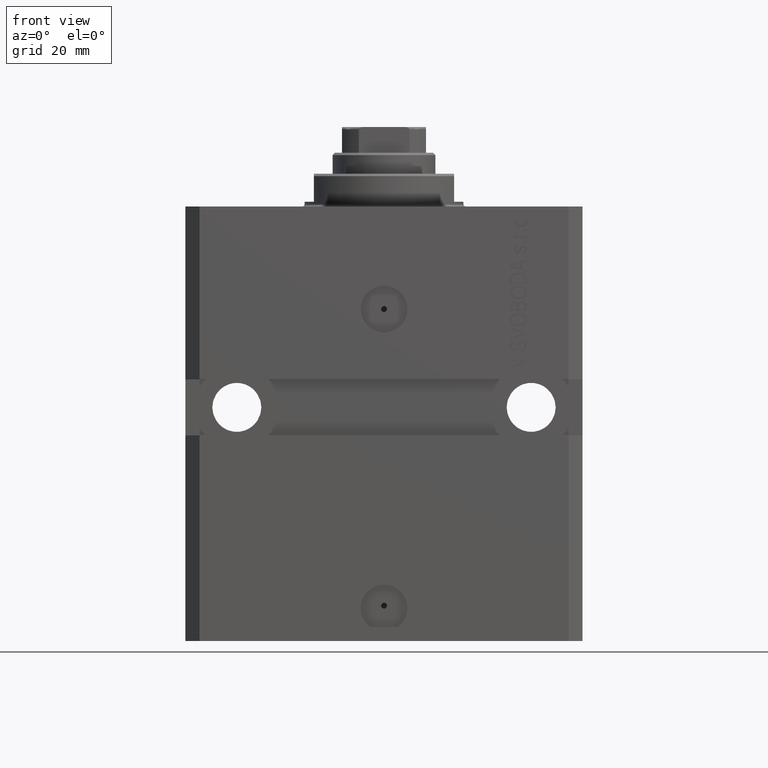
[diagram: clean part render]
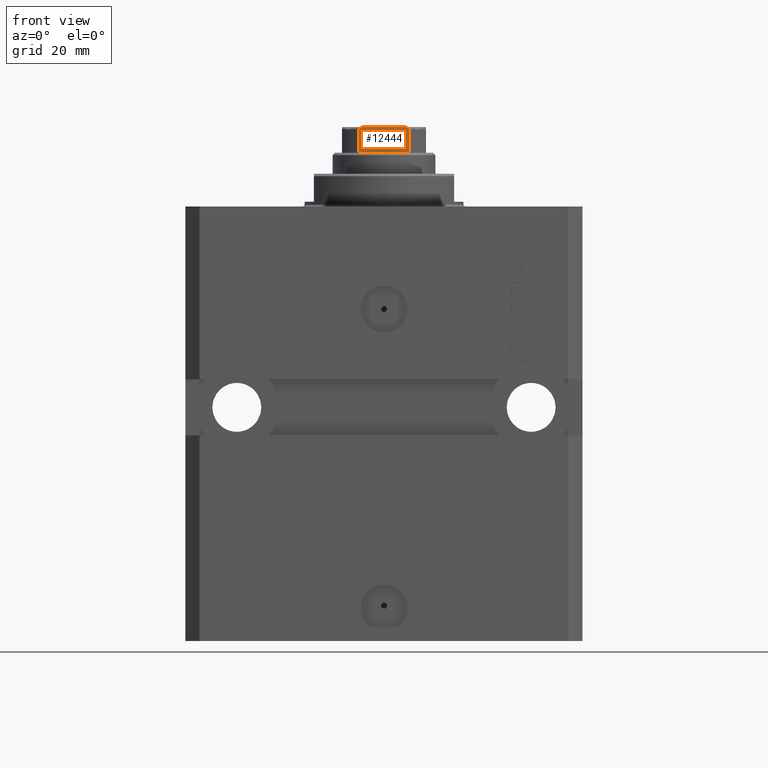
[diagram: same view with one face highlighted and labeled with its STEP entity id]
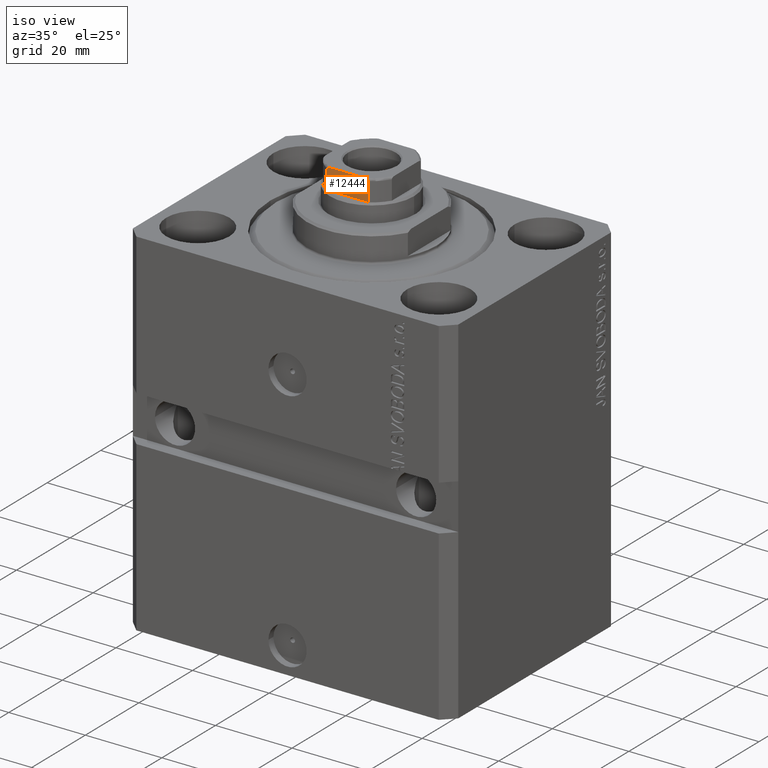
[diagram: same view with one face highlighted and labeled with its STEP entity id]
A machine part, front view. The second image highlights one B-rep face of the part: STEP entity #12444.
A second angle (iso view) of the same face is appended — the face is thin or edge-on in the first view.
In plain terms, the highlighted planar face has unit normal (0, 1, 0).
Its self-contained STEP definition (entity closure, byte-faithful):
#77 = LINE ( 'NONE', #29420, #20415 ) ;
#854 = DIRECTION ( 'NONE',  ( -0.000000000000000000, -0.000000000000000000, 1.000000000000000000 ) ) ;
#1957 = PLANE ( 'NONE',  #33714 ) ;
#3521 = CARTESIAN_POINT ( 'NONE',  ( 5.174818616237104152, -9.000000000000001776, 98.43252188465331187 ) ) ;
#5066 = EDGE_CURVE ( 'NONE', #11786, #22458, #27002, .T. ) ;
#6030 = EDGE_CURVE ( 'NONE', #11786, #16577, #31557, .T. ) ;
#6411 = CARTESIAN_POINT ( 'NONE',  ( 4.569278586016979560, -9.000000000000003553, 98.60000000000002274 ) ) ;
#6441 = CARTESIAN_POINT ( 'NONE',  ( -5.408326913195988794, -8.999999999999998224, 93.10000000000003695 ) ) ;
#6489 = DIRECTION ( 'NONE',  ( -0.000000000000000000, -0.000000000000000000, 1.000000000000000000 ) ) ;
#6686 = EDGE_CURVE ( 'NONE', #11506, #16577, #37805, .T. ) ;
#6903 = EDGE_CURVE ( 'NONE', #34530, #22458, #19623, .T. ) ;
#7834 = CARTESIAN_POINT ( 'NONE',  ( -5.408326913195988794, -8.999999999999998224, -0.001000000000001000089 ) ) ;
#8468 = CARTESIAN_POINT ( 'NONE',  ( -5.074490744525490982, -9.000000000000005329, 98.47872007843328390 ) ) ;
#8642 = CARTESIAN_POINT ( 'NONE',  ( -4.358898943540671311, -9.000000000000001776, 98.60000000000000853 ) ) ;
#8704 = ORIENTED_EDGE ( 'NONE', *, *, #45312, .T. ) ;
#9908 = VECTOR ( 'NONE', #6489, 1000.000000000000000 ) ;
#10257 = CARTESIAN_POINT ( 'NONE',  ( 5.390954572107313325, -9.000000000000001776, 98.20536285214002703 ) ) ;
#11067 = ORIENTED_EDGE ( 'NONE', *, *, #6903, .F. ) ;
#11506 = VERTEX_POINT ( 'NONE', #41428 ) ;
#11786 = VERTEX_POINT ( 'NONE', #8642 ) ;
#11833 = CARTESIAN_POINT ( 'NONE',  ( -5.173732970196582848, -9.000000000000000000, 98.43318086437983538 ) ) ;
#12073 = CARTESIAN_POINT ( 'NONE',  ( -4.358898943540671311, -9.000000000000001776, 98.60000000000000853 ) ) ;
#12444 = ADVANCED_FACE ( 'NONE', ( #45990 ), #1957, .F. ) ;
#12995 = EDGE_CURVE ( 'NONE', #14395, #11506, #21642, .T. ) ;
#13020 = DIRECTION ( 'NONE',  ( 0.000000000000000000, 1.000000000000000000, 0.000000000000000000 ) ) ;
#14161 = ORIENTED_EDGE ( 'NONE', *, *, #6686, .T. ) ;
#14395 = VERTEX_POINT ( 'NONE', #47507 ) ;
#14573 = CARTESIAN_POINT ( 'NONE',  ( 4.778533838065905925, -9.000000000000001776, 98.57782914764698035 ) ) ;
#14692 = ORIENTED_EDGE ( 'NONE', *, *, #12995, .T. ) ;
#16577 = VERTEX_POINT ( 'NONE', #26551 ) ;
#18388 = VECTOR ( 'NONE', #20739, 1000.000000000000000 ) ;
#19079 = EDGE_LOOP ( 'NONE', ( #42862, #21181, #11067, #8704, #14692, #14161 ) ) ;
#19547 = CARTESIAN_POINT ( 'NONE',  ( -5.297634495023406664, -9.000000000000003553, 98.33442280527800960 ) ) ;
#19623 = LINE ( 'NONE', #7834, #36860 ) ;
#20415 = VECTOR ( 'NONE', #44103, 1000.000000000000000 ) ;
#20739 = DIRECTION ( 'NONE',  ( 1.000000000000000000, 0.000000000000000000, 0.000000000000000000 ) ) ;
#21181 = ORIENTED_EDGE ( 'NONE', *, *, #5066, .T. ) ;
#21642 = LINE ( 'NONE', #40165, #9908 ) ;
#22458 = VERTEX_POINT ( 'NONE', #23110 ) ;
#23110 = CARTESIAN_POINT ( 'NONE',  ( -5.408326913195988794, -8.999999999999998224, 98.09999999999998010 ) ) ;
#23162 = CARTESIAN_POINT ( 'NONE',  ( -5.408326913195981689, -9.000000000000003553, 98.15374346731884714 ) ) ;
#26290 = CARTESIAN_POINT ( 'NONE',  ( -4.775913644518303691, -9.000000000000000000, 98.57814607430832154 ) ) ;
#26551 = CARTESIAN_POINT ( 'NONE',  ( 4.358898943540671311, -9.000000000000001776, 98.60000000000000853 ) ) ;
#26760 = CARTESIAN_POINT ( 'NONE',  ( -5.390945448132529627, -9.000000000000003553, 98.20548165389703854 ) ) ;
#27002 = B_SPLINE_CURVE_WITH_KNOTS ( 'NONE', 3,
 ( #12073, #33742, #26290, #8468, #11833, #19547, #37353, #26760, #23162, #45290 ),
 .UNSPECIFIED., .F., .F.,
 ( 4, 2, 2, 2, 4 ),
 ( 0.000000000000000000, 0.0006221106941441185327, 0.0009331660412161778533, 0.001088693714752207459, 0.001244221388288237065 ),
 .UNSPECIFIED. ) ;
#28320 = CARTESIAN_POINT ( 'NONE',  ( 4.358898943540671311, -9.000000000000001776, 98.60000000000000853 ) ) ;
#28781 = CARTESIAN_POINT ( 'NONE',  ( 5.408326913195988794, -8.999999999999998224, 98.09999999999998010 ) ) ;
#29420 = CARTESIAN_POINT ( 'NONE',  ( -8.999999999999998224, -9.000000000000001776, 93.10000000000000853 ) ) ;
#31557 = LINE ( 'NONE', #46238, #18388 ) ;
#32260 = CARTESIAN_POINT ( 'NONE',  ( -8.999999999999998224, -9.000000000000001776, 98.60000000000000853 ) ) ;
#33714 = AXIS2_PLACEMENT_3D ( 'NONE', #32260, #13020, #35627 ) ;
#33742 = CARTESIAN_POINT ( 'NONE',  ( -4.569272810556666009, -9.000000000000001776, 98.59999999999998010 ) ) ;
#34530 = VERTEX_POINT ( 'NONE', #6441 ) ;
#35627 = DIRECTION ( 'NONE',  ( 0.000000000000000000, -0.000000000000000000, 1.000000000000000000 ) ) ;
#36466 = CARTESIAN_POINT ( 'NONE',  ( 5.298186678102073444, -9.000000000000001776, 98.33387812150049001 ) ) ;
#36860 = VECTOR ( 'NONE', #854, 1000.000000000000000 ) ;
#37353 = CARTESIAN_POINT ( 'NONE',  ( -5.335288102212762062, -9.000000000000001776, 98.29569054027619757 ) ) ;
#37805 = B_SPLINE_CURVE_WITH_KNOTS ( 'NONE', 3,
 ( #28781, #39617, #10257, #47066, #36466, #3521, #43221, #14573, #6411, #28320 ),
 .UNSPECIFIED., .F., .F.,
 ( 4, 2, 2, 2, 4 ),
 ( 2.823925224926892107E-17, 0.0001582447020888494719, 0.0003164894041776707004, 0.0006329788083552850223, 0.001265957616710526893 ),
 .UNSPECIFIED. ) ;
#39617 = CARTESIAN_POINT ( 'NONE',  ( 5.408326913195989682, -8.999999999999998224, 98.15357207273351037 ) ) ;
#40165 = CARTESIAN_POINT ( 'NONE',  ( 5.408326913195988794, -8.999999999999998224, -0.001000000000001000089 ) ) ;
#41428 = CARTESIAN_POINT ( 'NONE',  ( 5.408326913195988794, -8.999999999999998224, 98.09999999999998010 ) ) ;
#42862 = ORIENTED_EDGE ( 'NONE', *, *, #6030, .F. ) ;
#43221 = CARTESIAN_POINT ( 'NONE',  ( 5.077896145217222212, -9.000000000000005329, 98.47730167760671804 ) ) ;
#44103 = DIRECTION ( 'NONE',  ( 1.000000000000000000, 0.000000000000000000, 0.000000000000000000 ) ) ;
#45290 = CARTESIAN_POINT ( 'NONE',  ( -5.408326913195988794, -8.999999999999998224, 98.09999999999998010 ) ) ;
#45312 = EDGE_CURVE ( 'NONE', #34530, #14395, #77, .T. ) ;
#45990 = FACE_OUTER_BOUND ( 'NONE', #19079, .T. ) ;
#46238 = CARTESIAN_POINT ( 'NONE',  ( -8.999999999999998224, -9.000000000000001776, 98.60000000000000853 ) ) ;
#47066 = CARTESIAN_POINT ( 'NONE',  ( 5.335664150027709773, -9.000000000000003553, 98.29518433800130595 ) ) ;
#47507 = CARTESIAN_POINT ( 'NONE',  ( 5.408326913195988794, -8.999999999999998224, 93.10000000000002274 ) ) ;